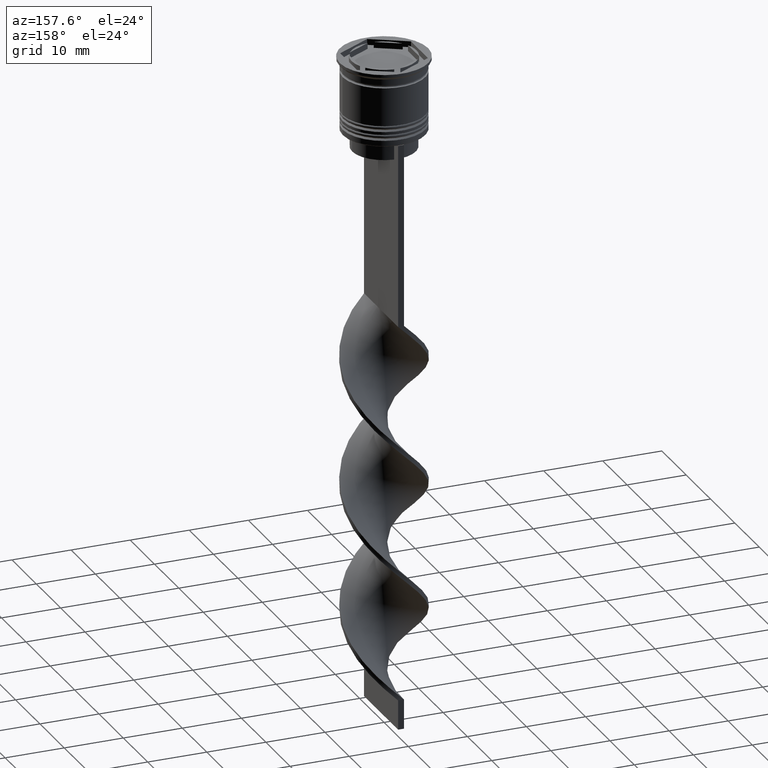
[diagram: clean part render]
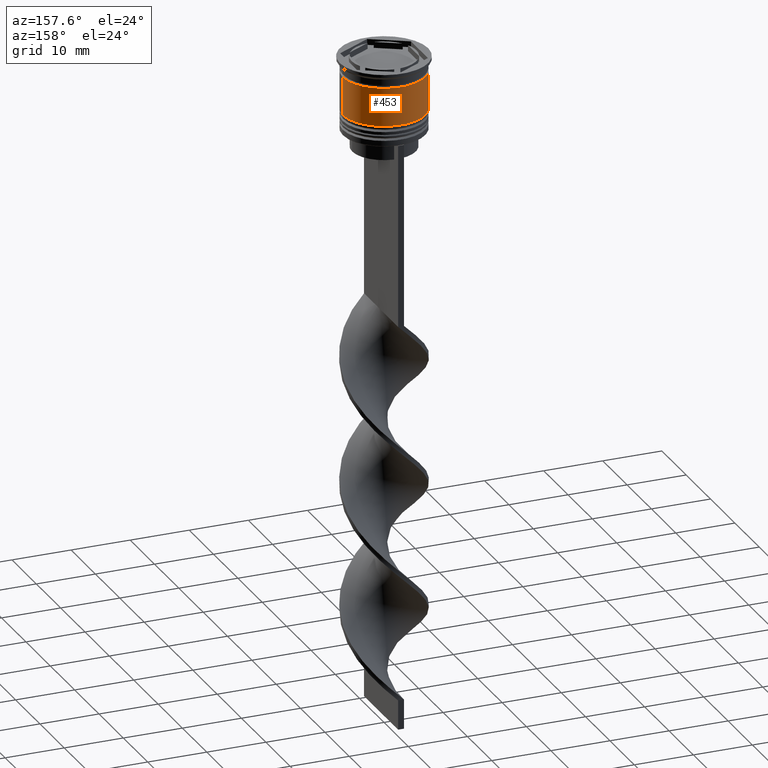
[diagram: same view with one face highlighted and labeled with its STEP entity id]
A machine part, auxiliary view. The second image highlights one B-rep face of the part: STEP entity #453.
In plain terms, the highlighted cylindrical surface (partial cylindrical patch) has radius 7 mm, axis along (-0, -0, 1).
Its self-contained STEP definition (entity closure, byte-faithful):
#3 = AXIS2_PLACEMENT_3D ( 'NONE', #1137, #1893, #490 ) ;
#110 = ORIENTED_EDGE ( 'NONE', *, *, #2175, .T. ) ;
#119 = CARTESIAN_POINT ( 'NONE',  ( 6.999999999999999112, 0.000000000000000000, 0.000000000000000000 ) ) ;
#174 = AXIS2_PLACEMENT_3D ( 'NONE', #3534, #1041, #2125 ) ;
#453 = ADVANCED_FACE ( 'NONE', ( #2510 ), #512, .T. ) ;
#482 = ORIENTED_EDGE ( 'NONE', *, *, #545, .F. ) ;
#490 = DIRECTION ( 'NONE',  ( 1.000000000000000000, 0.000000000000000000, 0.000000000000000000 ) ) ;
#512 = CYLINDRICAL_SURFACE ( 'NONE', #3, 6.999999999999999112 ) ;
#545 = EDGE_CURVE ( 'NONE', #3525, #663, #2041, .T. ) ;
#551 = CARTESIAN_POINT ( 'NONE',  ( -6.999999999999999112, 8.572527594031472204E-16, 0.000000000000000000 ) ) ;
#654 = EDGE_CURVE ( 'NONE', #1200, #1565, #2974, .T. ) ;
#663 = VERTEX_POINT ( 'NONE', #1648 ) ;
#728 = ORIENTED_EDGE ( 'NONE', *, *, #654, .T. ) ;
#827 = EDGE_CURVE ( 'NONE', #663, #1565, #2892, .T. ) ;
#1041 = DIRECTION ( 'NONE',  ( -0.000000000000000000, -0.000000000000000000, 1.000000000000000000 ) ) ;
#1137 = CARTESIAN_POINT ( 'NONE',  ( 0.000000000000000000, 0.000000000000000000, 0.000000000000000000 ) ) ;
#1200 = VERTEX_POINT ( 'NONE', #1645 ) ;
#1280 = CIRCLE ( 'NONE', #1926, 7.000000000000000888 ) ;
#1488 = CARTESIAN_POINT ( 'NONE',  ( 7.000000000000000888, 0.000000000000000000, -9.000000000000001776 ) ) ;
#1565 = VERTEX_POINT ( 'NONE', #3344 ) ;
#1645 = CARTESIAN_POINT ( 'NONE',  ( -7.000000000000000888, 8.572527594031474176E-16, -9.000000000000001776 ) ) ;
#1648 = CARTESIAN_POINT ( 'NONE',  ( 6.999999999999997335, 0.000000000000000000, -2.500000000000000444 ) ) ;
#1793 = DIRECTION ( 'NONE',  ( 1.000000000000000000, 0.000000000000000000, 0.000000000000000000 ) ) ;
#1893 = DIRECTION ( 'NONE',  ( -0.000000000000000000, -0.000000000000000000, 1.000000000000000000 ) ) ;
#1916 = VECTOR ( 'NONE', #2928, 1000.000000000000000 ) ;
#1926 = AXIS2_PLACEMENT_3D ( 'NONE', #2920, #2599, #1793 ) ;
#1945 = DIRECTION ( 'NONE',  ( -0.000000000000000000, -0.000000000000000000, 1.000000000000000000 ) ) ;
#1980 = ORIENTED_EDGE ( 'NONE', *, *, #827, .F. ) ;
#2041 = LINE ( 'NONE', #119, #1916 ) ;
#2125 = DIRECTION ( 'NONE',  ( 1.000000000000000000, 0.000000000000000000, 0.000000000000000000 ) ) ;
#2175 = EDGE_CURVE ( 'NONE', #3525, #1200, #1280, .T. ) ;
#2510 = FACE_OUTER_BOUND ( 'NONE', #2979, .T. ) ;
#2599 = DIRECTION ( 'NONE',  ( -0.000000000000000000, -0.000000000000000000, 1.000000000000000000 ) ) ;
#2892 = CIRCLE ( 'NONE', #174, 6.999999999999997335 ) ;
#2920 = CARTESIAN_POINT ( 'NONE',  ( 0.000000000000000000, 0.000000000000000000, -9.000000000000001776 ) ) ;
#2928 = DIRECTION ( 'NONE',  ( -0.000000000000000000, -0.000000000000000000, 1.000000000000000000 ) ) ;
#2974 = LINE ( 'NONE', #551, #3081 ) ;
#2979 = EDGE_LOOP ( 'NONE', ( #110, #728, #1980, #482 ) ) ;
#3081 = VECTOR ( 'NONE', #1945, 1000.000000000000000 ) ;
#3344 = CARTESIAN_POINT ( 'NONE',  ( -6.999999999999997335, 8.572527594031471218E-16, -2.500000000000000444 ) ) ;
#3525 = VERTEX_POINT ( 'NONE', #1488 ) ;
#3534 = CARTESIAN_POINT ( 'NONE',  ( 0.000000000000000000, 0.000000000000000000, -2.500000000000000444 ) ) ;